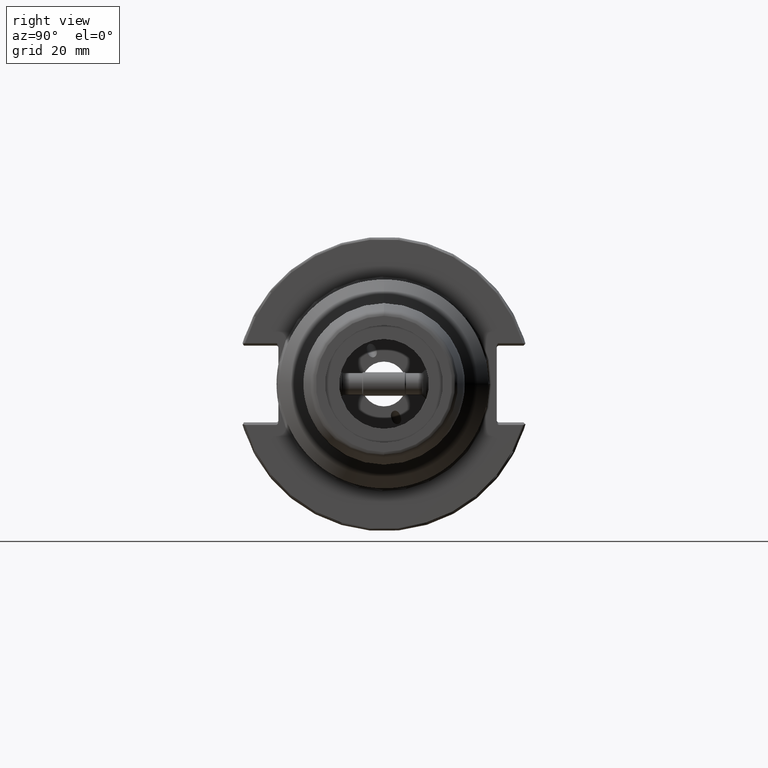
[diagram: clean part render]
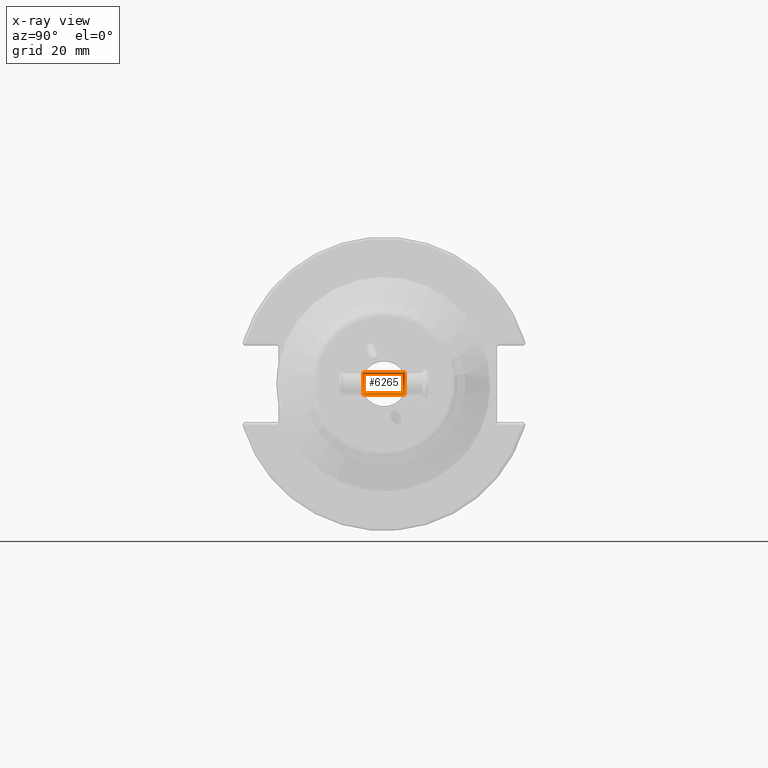
[diagram: x-ray — body ghosted, one internal face saturated and labeled with its STEP entity id]
A machine part, right view, then the same camera in x-ray: the body is ghosted and one INTERNAL B-rep face — a face not visible from any outside direction — is saturated and labeled: STEP entity #6265.
In plain terms, the highlighted cylindrical surface (edge-blend (fillet) strip) has radius 3.95 mm, axis along (-0, 1, 0).
Its self-contained STEP definition (entity closure, byte-faithful):
#212 = DIRECTION ( 'NONE',  ( -1.000000000000000000, -0.0000000000000000000, -0.0000000000000000000 ) ) ;
#561 = CIRCLE ( 'NONE', #1518, 3.949999999999998800 ) ;
#589 = EDGE_CURVE ( 'NONE', #7080, #3604, #2395, .T. ) ;
#675 = ORIENTED_EDGE ( 'NONE', *, *, #3991, .T. ) ;
#1198 = ORIENTED_EDGE ( 'NONE', *, *, #6340, .F. ) ;
#1265 = LINE ( 'NONE', #5641, #5542 ) ;
#1280 = DIRECTION ( 'NONE',  ( -1.000000000000000000, -0.0000000000000000000, -0.0000000000000000000 ) ) ;
#1336 = CARTESIAN_POINT ( 'NONE',  ( 19.99999999999999600, 0.0000000000000000000, 3.949999999999997100 ) ) ;
#1407 = CARTESIAN_POINT ( 'NONE',  ( 0.0000000000000000000, 4.837354856632042100E-016, -3.949999999999998000 ) ) ;
#1484 = AXIS2_PLACEMENT_3D ( 'NONE', #4626, #1280, #5188 ) ;
#1518 = AXIS2_PLACEMENT_3D ( 'NONE', #1683, #5554, #2236 ) ;
#1683 = CARTESIAN_POINT ( 'NONE',  ( 34.00000000000000000, 0.0000000000000000000, 0.0000000000000000000 ) ) ;
#1825 = VERTEX_POINT ( 'NONE', #3114 ) ;
#1889 = CARTESIAN_POINT ( 'NONE',  ( 0.0000000000000000000, 0.0000000000000000000, 0.0000000000000000000 ) ) ;
#2123 = FACE_OUTER_BOUND ( 'NONE', #5508, .T. ) ;
#2236 = DIRECTION ( 'NONE',  ( 0.0000000000000000000, 0.0000000000000000000, 1.000000000000000000 ) ) ;
#2395 = CIRCLE ( 'NONE', #1484, 3.949999999999997100 ) ;
#2870 = AXIS2_PLACEMENT_3D ( 'NONE', #1889, #212, #6339 ) ;
#3114 = CARTESIAN_POINT ( 'NONE',  ( 34.00000000000000000, 4.837354856632043100E-016, -3.949999999999998800 ) ) ;
#3604 = VERTEX_POINT ( 'NONE', #1336 ) ;
#3948 = ORIENTED_EDGE ( 'NONE', *, *, #589, .F. ) ;
#3991 = EDGE_CURVE ( 'NONE', #6762, #3604, #1265, .T. ) ;
#4556 = VECTOR ( 'NONE', #5295, 1000.000000000000000 ) ;
#4626 = CARTESIAN_POINT ( 'NONE',  ( 19.99999999999999600, 0.0000000000000000000, 0.0000000000000000000 ) ) ;
#4642 = ORIENTED_EDGE ( 'NONE', *, *, #6112, .T. ) ;
#4727 = LINE ( 'NONE', #1407, #4556 ) ;
#5086 = DIRECTION ( 'NONE',  ( -1.000000000000000000, -0.0000000000000000000, -0.0000000000000000000 ) ) ;
#5188 = DIRECTION ( 'NONE',  ( 0.0000000000000000000, 0.0000000000000000000, 1.000000000000000000 ) ) ;
#5295 = DIRECTION ( 'NONE',  ( -1.000000000000000000, -0.0000000000000000000, -0.0000000000000000000 ) ) ;
#5508 = EDGE_LOOP ( 'NONE', ( #1198, #4642, #675, #3948 ) ) ;
#5542 = VECTOR ( 'NONE', #5086, 1000.000000000000000 ) ;
#5554 = DIRECTION ( 'NONE',  ( -1.000000000000000000, -0.0000000000000000000, -0.0000000000000000000 ) ) ;
#5641 = CARTESIAN_POINT ( 'NONE',  ( 0.0000000000000000000, 0.0000000000000000000, 3.949999999999998000 ) ) ;
#6112 = EDGE_CURVE ( 'NONE', #1825, #6762, #561, .T. ) ;
#6220 = CYLINDRICAL_SURFACE ( 'NONE', #2870, 3.949999999999998000 ) ;
#6265 = ADVANCED_FACE ( 'NONE', ( #2123 ), #6220, .T. ) ;
#6339 = DIRECTION ( 'NONE',  ( 0.0000000000000000000, 0.0000000000000000000, 1.000000000000000000 ) ) ;
#6340 = EDGE_CURVE ( 'NONE', #1825, #7080, #4727, .T. ) ;
#6409 = CARTESIAN_POINT ( 'NONE',  ( 19.99999999999999600, 4.837354856632042100E-016, -3.949999999999997100 ) ) ;
#6451 = CARTESIAN_POINT ( 'NONE',  ( 34.00000000000000000, 0.0000000000000000000, 3.949999999999998800 ) ) ;
#6762 = VERTEX_POINT ( 'NONE', #6451 ) ;
#7080 = VERTEX_POINT ( 'NONE', #6409 ) ;